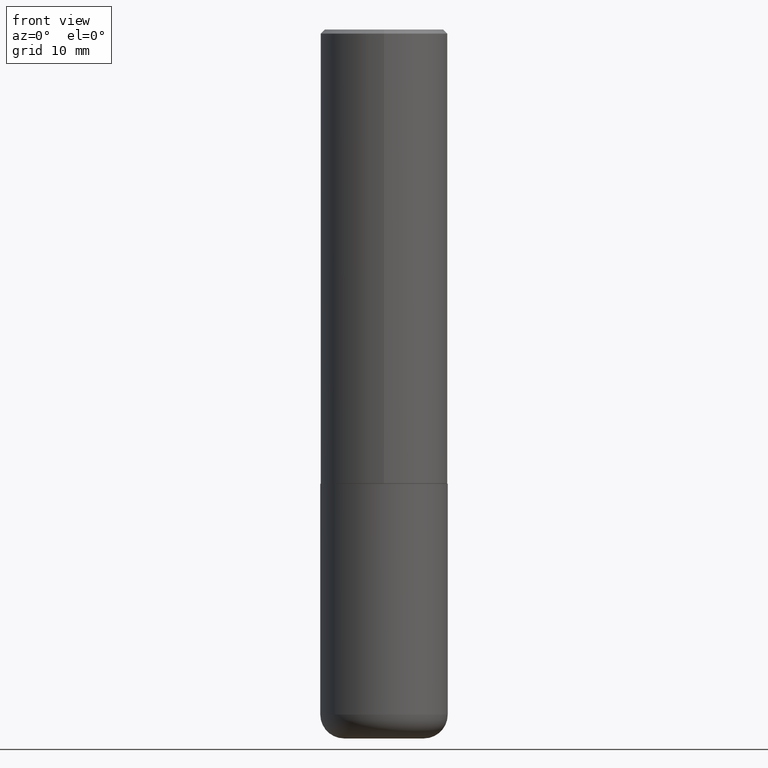
[diagram: clean part render]
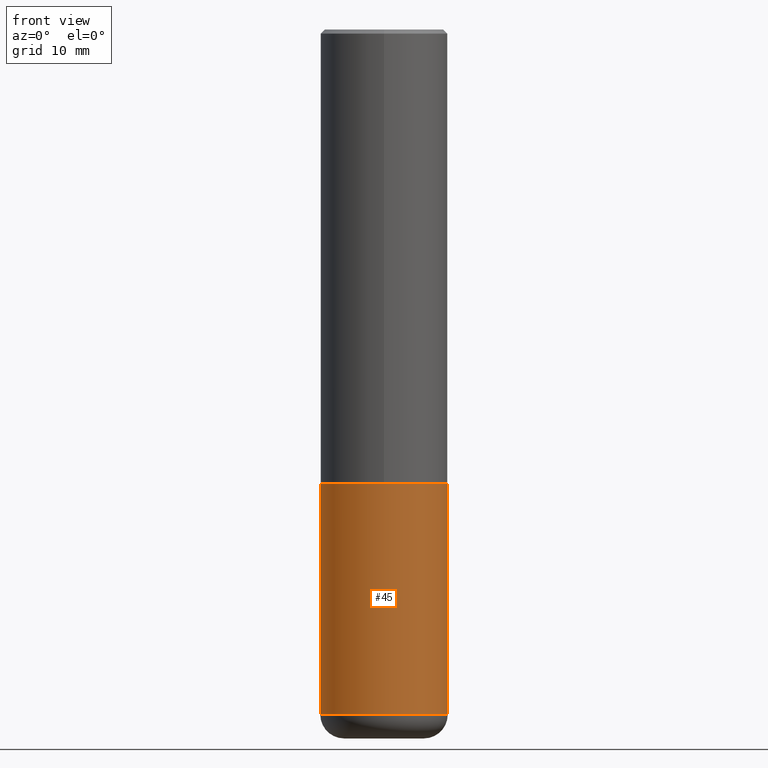
[diagram: same view with one face highlighted and labeled with its STEP entity id]
A machine part, front view. The second image highlights one B-rep face of the part: STEP entity #45.
In plain terms, the highlighted cylindrical surface (partial cylindrical patch) has radius 7.9997 mm, axis along (-0, 0, 1).
Its self-contained STEP definition (entity closure, byte-faithful):
#15 = DIRECTION ( 'NONE',  ( 1.000000000000000000, -6.982962677686269866E-15, 0.000000000000000000 ) ) ;
#20 = CARTESIAN_POINT ( 'NONE',  ( 0.3149500000000000077, -1.003451736783519063E-14, -2.244099999999999540 ) ) ;
#26 = LINE ( 'NONE', #160, #71 ) ;
#29 = CARTESIAN_POINT ( 'NONE',  ( -0.3149500000000000077, -7.590491048500074682E-15, -2.244099999999999540 ) ) ;
#45 = ADVANCED_FACE ( 'NONE', ( #64 ), #173, .T. ) ;
#46 = DIRECTION ( 'NONE',  ( -2.445468806185136597E-29, 3.491481338843145583E-15, 1.000000000000000000 ) ) ;
#47 = CARTESIAN_POINT ( 'NONE',  ( 5.487876547960064752E-29, -7.835233272497900762E-15, -2.244099999999999540 ) ) ;
#64 = FACE_OUTER_BOUND ( 'NONE', #279, .T. ) ;
#69 = EDGE_CURVE ( 'NONE', #270, #361, #70, .T. ) ;
#70 = CIRCLE ( 'NONE', #368, 0.3149500000000000077 ) ;
#71 = VECTOR ( 'NONE', #292, 39.37007874015748143 ) ;
#83 = DIRECTION ( 'NONE',  ( 1.000000000000000000, -6.982962677686266711E-15, 0.000000000000000000 ) ) ;
#100 = ORIENTED_EDGE ( 'NONE', *, *, #231, .T. ) ;
#102 = VERTEX_POINT ( 'NONE', #20 ) ;
#107 = AXIS2_PLACEMENT_3D ( 'NONE', #47, #377, #83 ) ;
#153 = LINE ( 'NONE', #288, #289 ) ;
#160 = CARTESIAN_POINT ( 'NONE',  ( 0.3149500000000000077, -2.199284095337289871E-15, 1.535751875536930130E-29 ) ) ;
#164 = EDGE_CURVE ( 'NONE', #309, #102, #193, .T. ) ;
#173 = CYLINDRICAL_SURFACE ( 'NONE', #265, 0.3149500000000000077 ) ;
#177 = ORIENTED_EDGE ( 'NONE', *, *, #190, .F. ) ;
#180 = DIRECTION ( 'NONE',  ( -2.445468806185136877E-29, 3.491481338843145188E-15, 1.000000000000000000 ) ) ;
#184 = DIRECTION ( 'NONE',  ( 1.000000000000000000, -6.982962677686266711E-15, 4.876176775795936353E-29 ) ) ;
#190 = EDGE_CURVE ( 'NONE', #270, #309, #153, .T. ) ;
#193 = CIRCLE ( 'NONE', #107, 0.3149500000000000077 ) ;
#195 = ORIENTED_EDGE ( 'NONE', *, *, #69, .T. ) ;
#219 = DIRECTION ( 'NONE',  ( -2.445468806185136597E-29, 3.491481338843145583E-15, 1.000000000000000000 ) ) ;
#223 = CARTESIAN_POINT ( 'NONE',  ( 0.000000000000000000, 0.000000000000000000, 0.000000000000000000 ) ) ;
#230 = CARTESIAN_POINT ( 'NONE',  ( -0.3149499999999998967, -9.583603170778684587E-15, -3.385799999999999699 ) ) ;
#231 = EDGE_CURVE ( 'NONE', #361, #102, #26, .T. ) ;
#265 = AXIS2_PLACEMENT_3D ( 'NONE', #223, #46, #184 ) ;
#270 = VERTEX_POINT ( 'NONE', #230 ) ;
#279 = EDGE_LOOP ( 'NONE', ( #177, #195, #100, #383 ) ) ;
#286 = CARTESIAN_POINT ( 'NONE',  ( 8.279868283981634472E-29, -1.182145751705512057E-14, -3.385799999999999699 ) ) ;
#288 = CARTESIAN_POINT ( 'NONE',  ( -0.3149500000000000077, 2.237854346276435590E-15, -1.549218606675782676E-29 ) ) ;
#289 = VECTOR ( 'NONE', #180, 39.37007874015748143 ) ;
#292 = DIRECTION ( 'NONE',  ( -2.445468806185136877E-29, 3.491481338843145188E-15, 1.000000000000000000 ) ) ;
#309 = VERTEX_POINT ( 'NONE', #29 ) ;
#361 = VERTEX_POINT ( 'NONE', #416 ) ;
#368 = AXIS2_PLACEMENT_3D ( 'NONE', #286, #219, #15 ) ;
#377 = DIRECTION ( 'NONE',  ( -2.445468806185136597E-29, 3.491481338843145583E-15, 1.000000000000000000 ) ) ;
#383 = ORIENTED_EDGE ( 'NONE', *, *, #164, .F. ) ;
#416 = CARTESIAN_POINT ( 'NONE',  ( 0.3149499999999998967, -1.402074161239241202E-14, -3.385799999999999699 ) ) ;